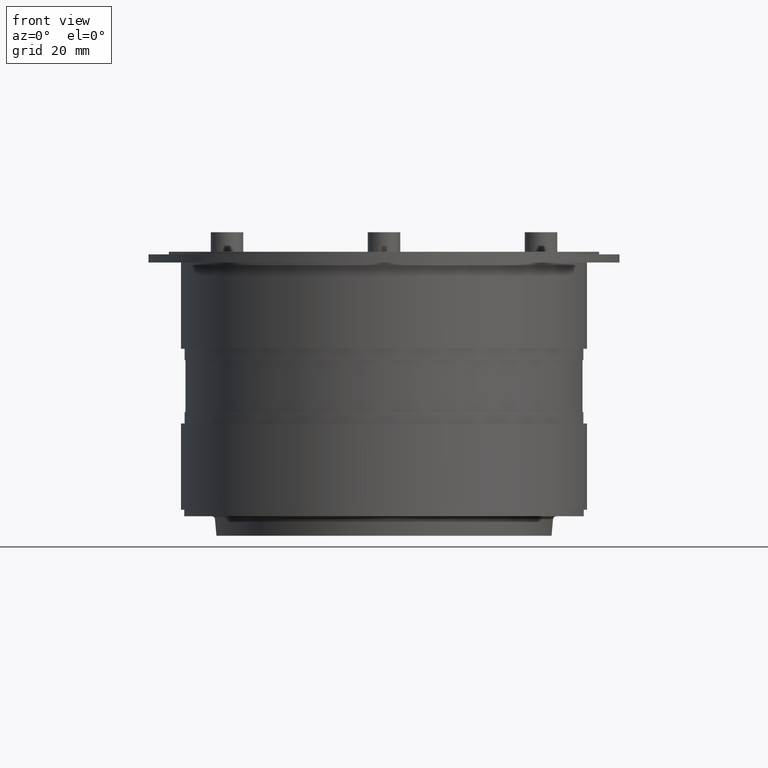
[diagram: clean part render]
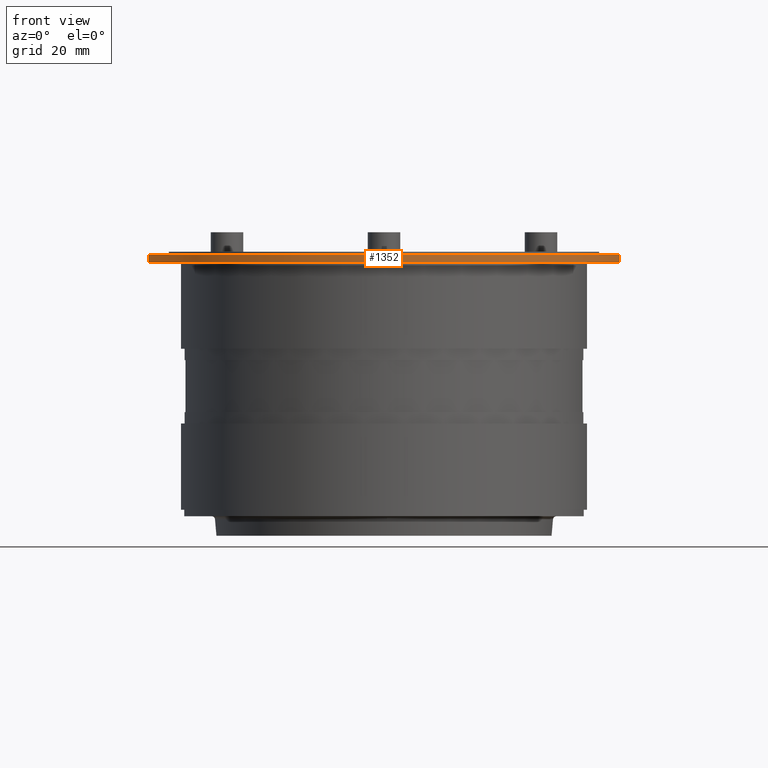
[diagram: same view with one face highlighted and labeled with its STEP entity id]
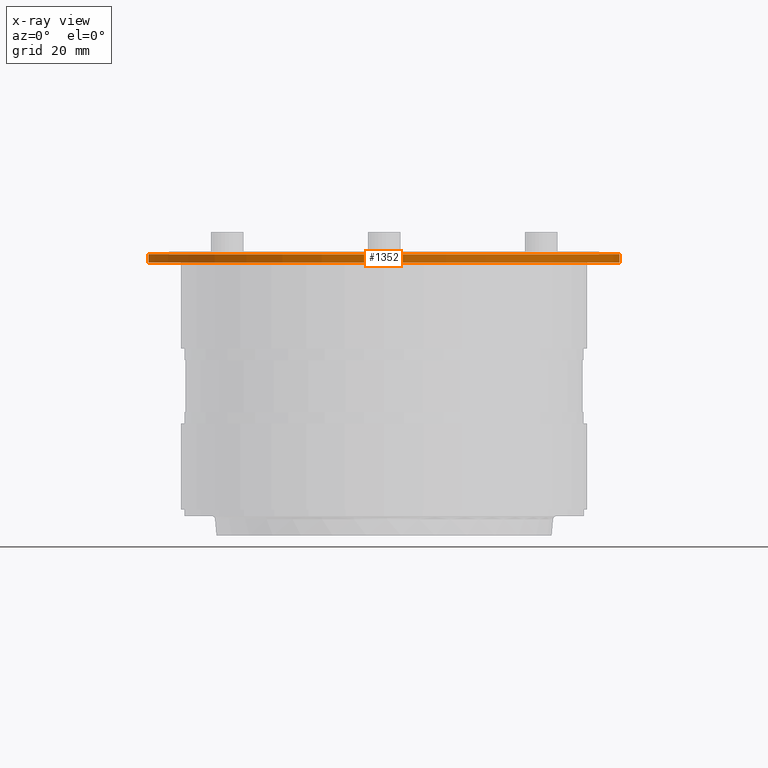
[diagram: x-ray of the same camera — body ghosted, the highlighted face saturated]
A machine part, front view. The second image highlights one B-rep face of the part: STEP entity #1352.
The next image is the same camera in x-ray: the body ghosted, the highlighted face saturated — about 0% of this face is hidden behind the body in this view.
In plain terms, the highlighted cylindrical surface (partial cylindrical patch) has radius 72.5 mm, axis along (0, -0, 1).
Its self-contained STEP definition (entity closure, byte-faithful):
#162=CARTESIAN_POINT('',(-92.646283983996057,-23.522666824407956,1.250000000000000));
#163=VERTEX_POINT('',#162);
#171=CARTESIAN_POINT('',(-92.646283983996057,-23.522666824407956,-1.250000000000000));
#172=VERTEX_POINT('',#171);
#173=CARTESIAN_POINT('',(-92.646283983996057,-23.522666824407956,-1.250000000000000));
#174=DIRECTION('',(0.0,0.0,1.0));
#175=VECTOR('',#174,2.500000000000000);
#176=LINE('',#173,#175);
#177=EDGE_CURVE('',#172,#163,#176,.T.);
#204=CARTESIAN_POINT('',(52.113363610413984,-23.522666824407956,-1.250000000000000));
#205=VERTEX_POINT('',#204);
#213=CARTESIAN_POINT('',(52.113363610413984,-23.522666824407956,1.250000000000000));
#214=VERTEX_POINT('',#213);
#215=CARTESIAN_POINT('',(52.113363610413984,-23.522666824407956,-1.250000000000000));
#216=DIRECTION('',(0.0,0.0,1.0));
#217=VECTOR('',#216,2.500000000000000);
#218=LINE('',#215,#217);
#219=EDGE_CURVE('',#205,#214,#218,.T.);
#1329=CARTESIAN_POINT('',(-20.266460186791051,-27.695328694911552,-1.250000000000000));
#1330=DIRECTION('',(0.0,0.0,1.0));
#1331=DIRECTION('',(1.0,0.0,0.0));
#1332=AXIS2_PLACEMENT_3D('',#1329,#1330,#1331);
#1333=CYLINDRICAL_SURFACE('',#1332,72.500000000000000);
#1334=CARTESIAN_POINT('',(-20.266460186791051,-27.695328694911552,1.250000000000000));
#1335=DIRECTION('',(0.0,0.0,-1.0));
#1336=DIRECTION('',(1.0,0.0,0.0));
#1337=AXIS2_PLACEMENT_3D('',#1334,#1335,#1336);
#1338=CIRCLE('',#1337,72.500000000000000);
#1339=EDGE_CURVE('',#163,#214,#1338,.T.);
#1340=ORIENTED_EDGE('',*,*,#1339,.T.);
#1341=ORIENTED_EDGE('',*,*,#219,.F.);
#1342=CARTESIAN_POINT('',(-20.266460186791051,-27.695328694911552,-1.250000000000000));
#1343=DIRECTION('',(0.0,0.0,1.0));
#1344=DIRECTION('',(1.0,0.0,0.0));
#1345=AXIS2_PLACEMENT_3D('',#1342,#1343,#1344);
#1346=CIRCLE('',#1345,72.500000000000000);
#1347=EDGE_CURVE('',#205,#172,#1346,.T.);
#1348=ORIENTED_EDGE('',*,*,#1347,.T.);
#1349=ORIENTED_EDGE('',*,*,#177,.T.);
#1350=EDGE_LOOP('',(#1340,#1341,#1348,#1349));
#1351=FACE_OUTER_BOUND('',#1350,.T.);
#1352=ADVANCED_FACE('',(#1351),#1333,.T.);